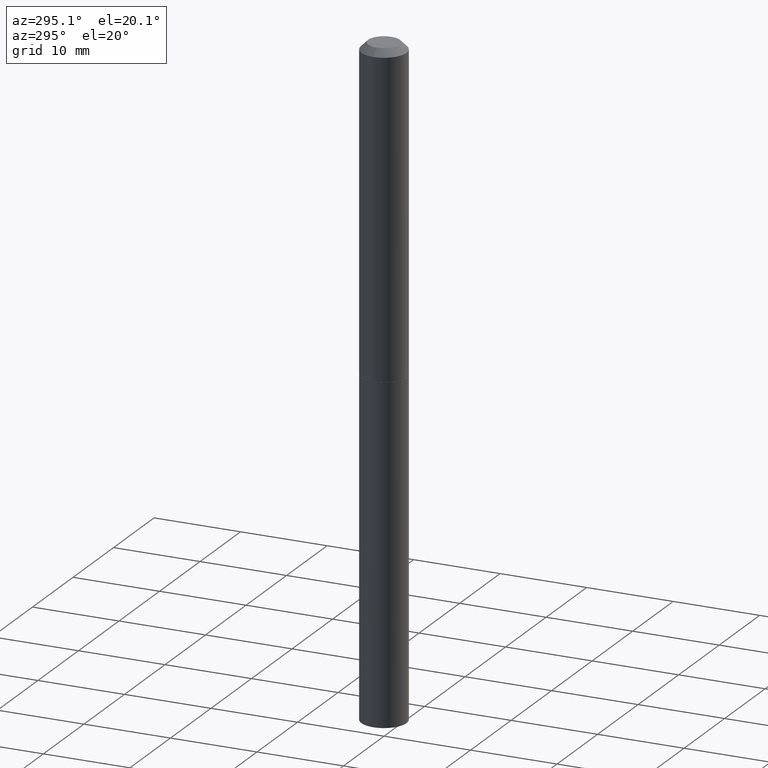
[diagram: clean part render]
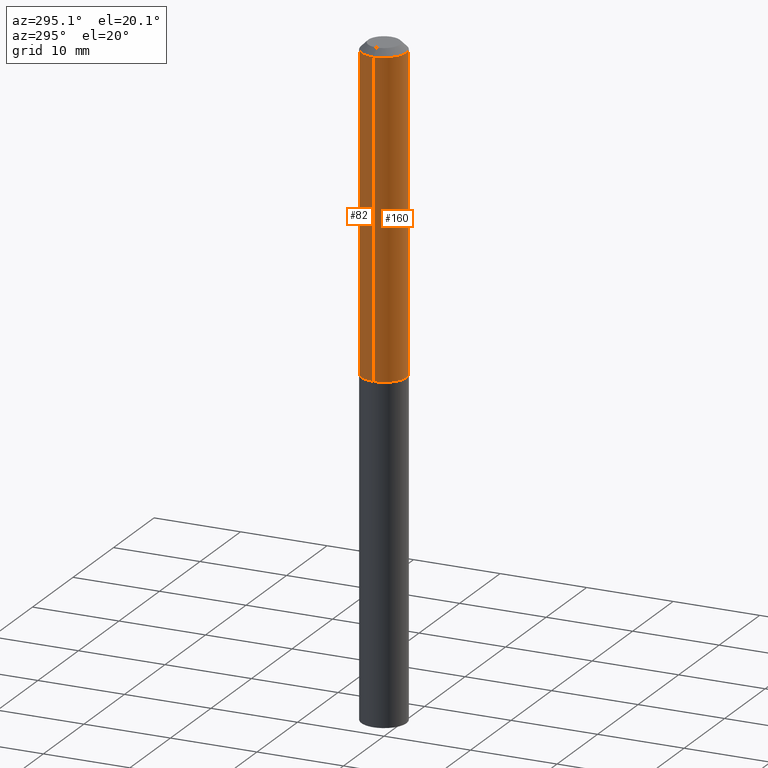
[diagram: same view with one multi-face feature highlighted, each face labeled with its STEP entity id]
A machine part, auxiliary view. The highlighted faces form ONE feature: a constant-radius fillet chain: 2 tangent blend faces with common blend radius 2.6099 mm. The faces share edges in the B-rep.
Their STEP definitions:
[1] entity #160 (Cylinder):
#3 = DIRECTION ( 'NONE',  ( -2.445468806185136877E-29, 3.491481338843145188E-15, 1.000000000000000000 ) ) ;
#9 = DIRECTION ( 'NONE',  ( 1.000000000000000000, -6.982962677686266711E-15, 0.000000000000000000 ) ) ;
#15 = DIRECTION ( 'NONE',  ( -2.445468806185136597E-29, 3.491481338843145583E-15, 1.000000000000000000 ) ) ;
#36 = CIRCLE ( 'NONE', #124, 0.1027500000000001745 ) ;
#37 = CARTESIAN_POINT ( 'NONE',  ( -0.1027499999999999941, -1.864524408934309430E-15, -0.03125000000000019429 ) ) ;
#39 = LINE ( 'NONE', #241, #275 ) ;
#42 = CARTESIAN_POINT ( 'NONE',  ( 7.642090019328598283E-31, -1.091087918388489651E-16, -0.03125000000000019429 ) ) ;
#80 = VERTEX_POINT ( 'NONE', #37 ) ;
#87 = CARTESIAN_POINT ( 'NONE',  ( -0.1027500000000000913, 7.300826609935035894E-16, -5.054205805236919921E-30 ) ) ;
#108 = AXIS2_PLACEMENT_3D ( 'NONE', #266, #388, #120 ) ;
#120 = DIRECTION ( 'NONE',  ( 1.000000000000000000, -6.982962677686265922E-15, 4.876176775795935232E-29 ) ) ;
#124 = AXIS2_PLACEMENT_3D ( 'NONE', #209, #198, #9 ) ;
#125 = CARTESIAN_POINT ( 'NONE',  ( -0.1027500000000001745, -4.350022687023274336E-15, -1.455000000000000515 ) ) ;
#138 = EDGE_CURVE ( 'NONE', #257, #80, #230, .T. ) ;
#150 = DIRECTION ( 'NONE',  ( 1.000000000000000000, -6.982962677686266711E-15, 0.000000000000000000 ) ) ;
#154 = ORIENTED_EDGE ( 'NONE', *, *, #214, .F. ) ;
#160 = ADVANCED_FACE ( 'NONE', ( #263 ), #298, .T. ) ;
#163 = CIRCLE ( 'NONE', #281, 0.1027499999999999941 ) ;
#175 = CARTESIAN_POINT ( 'NONE',  ( 0.1027500000000001745, -5.797604763149043699E-15, -1.455000000000000515 ) ) ;
#190 = ORIENTED_EDGE ( 'NONE', *, *, #368, .T. ) ;
#198 = DIRECTION ( 'NONE',  ( -2.445468806185136597E-29, 3.491481338843145583E-15, 1.000000000000000000 ) ) ;
#199 = VERTEX_POINT ( 'NONE', #175 ) ;
#209 = CARTESIAN_POINT ( 'NONE',  ( 3.558157112999375183E-29, -5.080105348016778122E-15, -1.455000000000000515 ) ) ;
#214 = EDGE_CURVE ( 'NONE', #80, #220, #163, .T. ) ;
#218 = ORIENTED_EDGE ( 'NONE', *, *, #138, .F. ) ;
#220 = VERTEX_POINT ( 'NONE', #339 ) ;
#230 = LINE ( 'NONE', #87, #315 ) ;
#241 = CARTESIAN_POINT ( 'NONE',  ( 0.1027500000000000913, -7.174994151322644922E-16, 5.010271637130328063E-30 ) ) ;
#257 = VERTEX_POINT ( 'NONE', #125 ) ;
#260 = ORIENTED_EDGE ( 'NONE', *, *, #323, .T. ) ;
#263 = FACE_OUTER_BOUND ( 'NONE', #299, .T. ) ;
#266 = CARTESIAN_POINT ( 'NONE',  ( 0.000000000000000000, 0.000000000000000000, 0.000000000000000000 ) ) ;
#275 = VECTOR ( 'NONE', #370, 39.37007874015748143 ) ;
#281 = AXIS2_PLACEMENT_3D ( 'NONE', #42, #15, #150 ) ;
#298 = CYLINDRICAL_SURFACE ( 'NONE', #108, 0.1027500000000000913 ) ;
#299 = EDGE_LOOP ( 'NONE', ( #218, #260, #190, #154 ) ) ;
#315 = VECTOR ( 'NONE', #3, 39.37007874015748143 ) ;
#323 = EDGE_CURVE ( 'NONE', #257, #199, #36, .T. ) ;
#339 = CARTESIAN_POINT ( 'NONE',  ( 0.1027499999999999941, -8.266082069711128040E-16, -0.03125000000000019429 ) ) ;
#368 = EDGE_CURVE ( 'NONE', #199, #220, #39, .T. ) ;
#370 = DIRECTION ( 'NONE',  ( -2.445468806185136877E-29, 3.491481338843145188E-15, 1.000000000000000000 ) ) ;
#388 = DIRECTION ( 'NONE',  ( -2.445468806185136597E-29, 3.491481338843145583E-15, 1.000000000000000000 ) ) ;
[2] entity #82 (Cylinder):
#3 = DIRECTION ( 'NONE',  ( -2.445468806185136877E-29, 3.491481338843145188E-15, 1.000000000000000000 ) ) ;
#26 = EDGE_CURVE ( 'NONE', #220, #80, #223, .T. ) ;
#37 = CARTESIAN_POINT ( 'NONE',  ( -0.1027499999999999941, -1.864524408934309430E-15, -0.03125000000000019429 ) ) ;
#39 = LINE ( 'NONE', #241, #275 ) ;
#56 = AXIS2_PLACEMENT_3D ( 'NONE', #227, #358, #83 ) ;
#61 = DIRECTION ( 'NONE',  ( 1.000000000000000000, -6.982962677686266711E-15, 0.000000000000000000 ) ) ;
#63 = DIRECTION ( 'NONE',  ( -2.445468806185136597E-29, 3.491481338843145583E-15, 1.000000000000000000 ) ) ;
#77 = AXIS2_PLACEMENT_3D ( 'NONE', #367, #91, #207 ) ;
#80 = VERTEX_POINT ( 'NONE', #37 ) ;
#82 = ADVANCED_FACE ( 'NONE', ( #385 ), #359, .T. ) ;
#83 = DIRECTION ( 'NONE',  ( 1.000000000000000000, -6.982962677686265922E-15, 4.876176775795935232E-29 ) ) ;
#87 = CARTESIAN_POINT ( 'NONE',  ( -0.1027500000000000913, 7.300826609935035894E-16, -5.054205805236919921E-30 ) ) ;
#89 = ORIENTED_EDGE ( 'NONE', *, *, #301, .T. ) ;
#91 = DIRECTION ( 'NONE',  ( -2.445468806185136597E-29, 3.491481338843145583E-15, 1.000000000000000000 ) ) ;
#125 = CARTESIAN_POINT ( 'NONE',  ( -0.1027500000000001745, -4.350022687023274336E-15, -1.455000000000000515 ) ) ;
#138 = EDGE_CURVE ( 'NONE', #257, #80, #230, .T. ) ;
#175 = CARTESIAN_POINT ( 'NONE',  ( 0.1027500000000001745, -5.797604763149043699E-15, -1.455000000000000515 ) ) ;
#196 = CARTESIAN_POINT ( 'NONE',  ( 7.642090019328598283E-31, -1.091087918388489651E-16, -0.03125000000000019429 ) ) ;
#199 = VERTEX_POINT ( 'NONE', #175 ) ;
#207 = DIRECTION ( 'NONE',  ( 1.000000000000000000, -6.982962677686266711E-15, 0.000000000000000000 ) ) ;
#220 = VERTEX_POINT ( 'NONE', #339 ) ;
#223 = CIRCLE ( 'NONE', #351, 0.1027499999999999941 ) ;
#227 = CARTESIAN_POINT ( 'NONE',  ( 0.000000000000000000, 0.000000000000000000, 0.000000000000000000 ) ) ;
#230 = LINE ( 'NONE', #87, #315 ) ;
#241 = CARTESIAN_POINT ( 'NONE',  ( 0.1027500000000000913, -7.174994151322644922E-16, 5.010271637130328063E-30 ) ) ;
#257 = VERTEX_POINT ( 'NONE', #125 ) ;
#262 = ORIENTED_EDGE ( 'NONE', *, *, #138, .T. ) ;
#275 = VECTOR ( 'NONE', #370, 39.37007874015748143 ) ;
#280 = EDGE_LOOP ( 'NONE', ( #89, #262, #282, #348 ) ) ;
#282 = ORIENTED_EDGE ( 'NONE', *, *, #26, .F. ) ;
#294 = CIRCLE ( 'NONE', #77, 0.1027500000000001745 ) ;
#301 = EDGE_CURVE ( 'NONE', #199, #257, #294, .T. ) ;
#315 = VECTOR ( 'NONE', #3, 39.37007874015748143 ) ;
#339 = CARTESIAN_POINT ( 'NONE',  ( 0.1027499999999999941, -8.266082069711128040E-16, -0.03125000000000019429 ) ) ;
#348 = ORIENTED_EDGE ( 'NONE', *, *, #368, .F. ) ;
#351 = AXIS2_PLACEMENT_3D ( 'NONE', #196, #63, #61 ) ;
#358 = DIRECTION ( 'NONE',  ( -2.445468806185136597E-29, 3.491481338843145583E-15, 1.000000000000000000 ) ) ;
#359 = CYLINDRICAL_SURFACE ( 'NONE', #56, 0.1027500000000000913 ) ;
#367 = CARTESIAN_POINT ( 'NONE',  ( 3.558157112999375183E-29, -5.080105348016778122E-15, -1.455000000000000515 ) ) ;
#368 = EDGE_CURVE ( 'NONE', #199, #220, #39, .T. ) ;
#370 = DIRECTION ( 'NONE',  ( -2.445468806185136877E-29, 3.491481338843145188E-15, 1.000000000000000000 ) ) ;
#385 = FACE_OUTER_BOUND ( 'NONE', #280, .T. ) ;